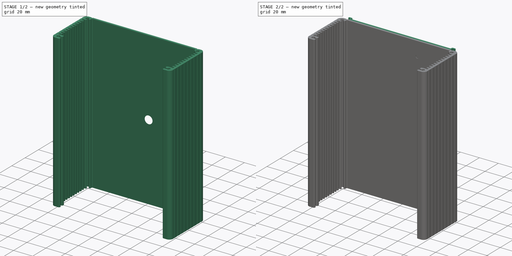
[diagram: build sequence overview — one tinted view per stage of 2, left to right]
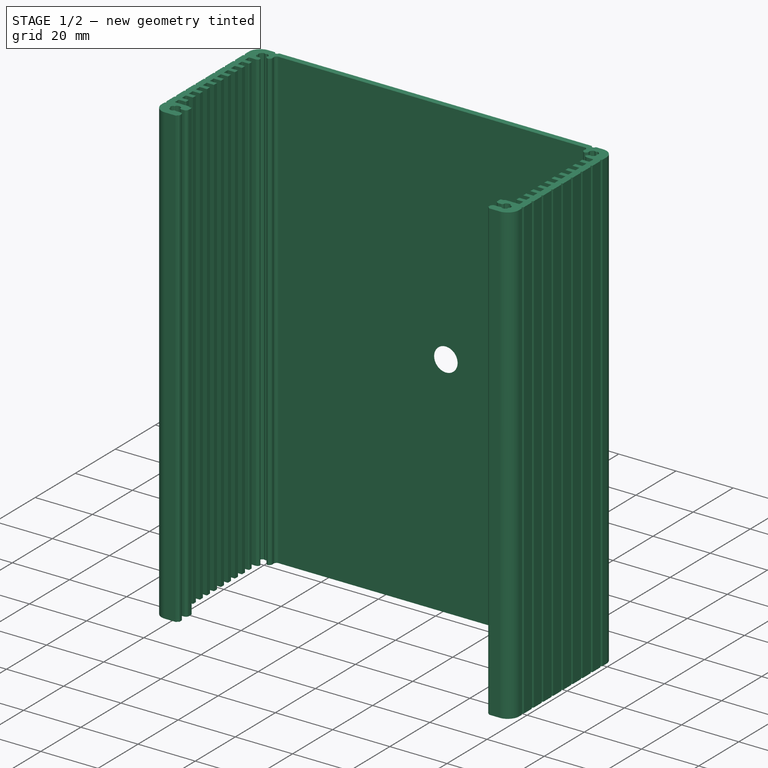
[diagram: stage 1 of 2 — iso view after this stage's code; geometry added in this stage tinted green]
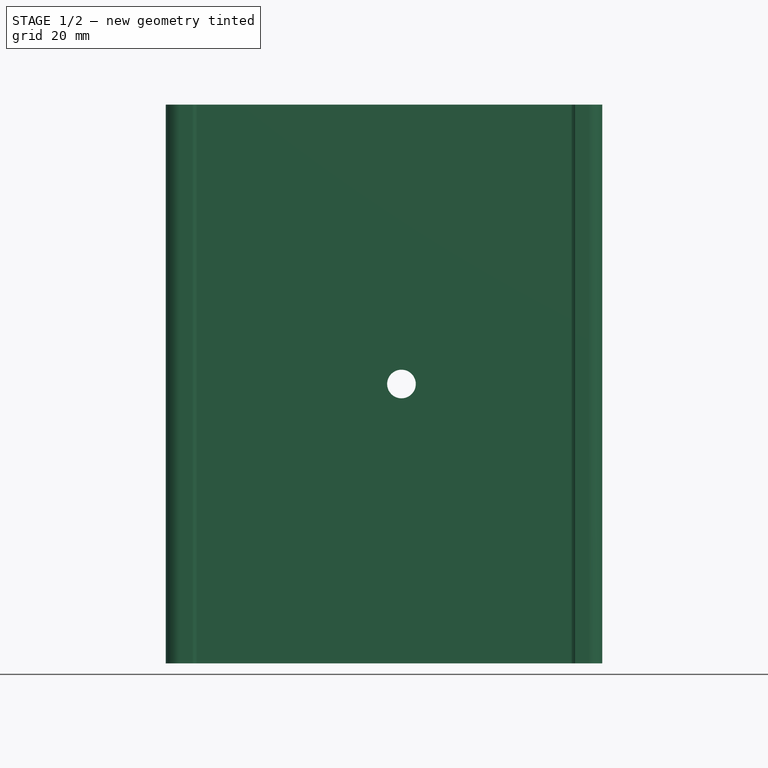
[diagram: stage 1 of 2 — front view after this stage's code; geometry added in this stage tinted green]
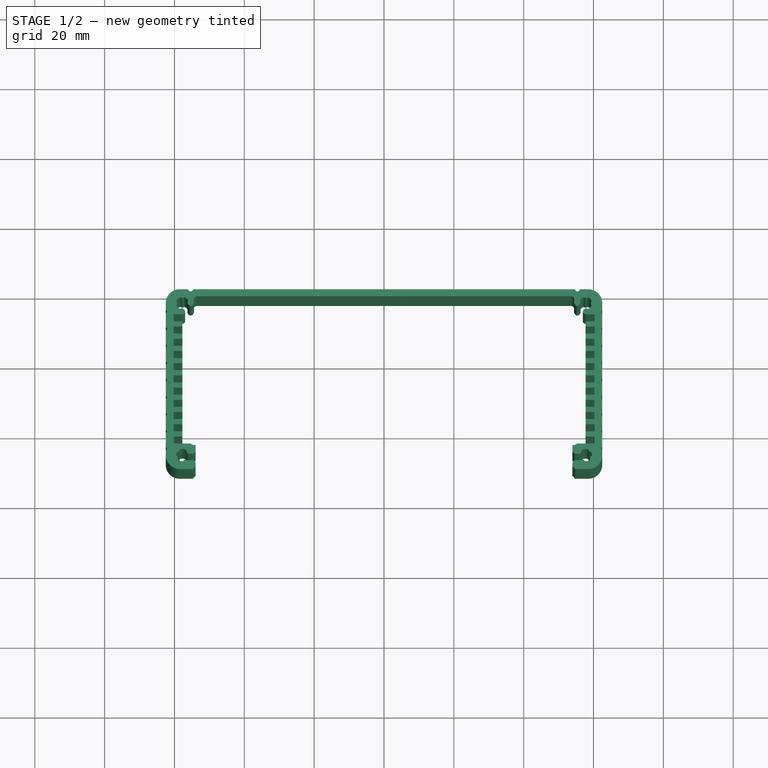
[diagram: stage 1 of 2 — top view after this stage's code; geometry added in this stage tinted green]
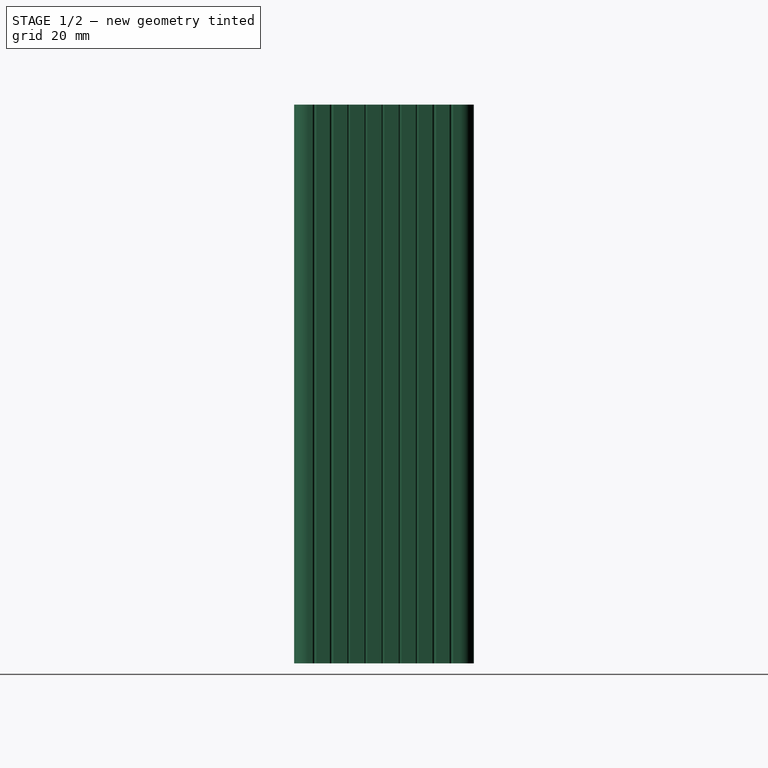
[diagram: stage 1 of 2 — right view after this stage's code; geometry added in this stage tinted green]
FCSTD DOCUMENT  (FreeCAD 0.20R28730 (Git))
Label: Enclosure 1455Q1602BK
License: All rights reserved
LicenseURL: http://en.wikipedia.org/wiki/All_rights_reserved
objects: PartDesign::CoordinateSystem×6, Part::Feature×2, PartDesign::FeatureBase×2, Sketcher::SketchObject×2, PartDesign::Hole×2, PartDesign::Body×2
note: 18 computed .brp shape members not serialized (recipe doc carries the construction recipe); baked Part::Feature solids carry a one-line shape summary decoded from their .brp

FEATURE [Part::Feature] Part__Feature  label="1455Q1602BK Extrusion 160mm"
  Placement = pos=(0,0,0) rot=(-1,0,0;1.5708rad)
  shape: bbox 125 x 160 x 51.5 mm, 282 faces (baked)
FEATURE [Part::Feature] Part__Feature001  label="1455Q1602BK Cap 160mm"
  Placement = pos=(0,0,51.5) rot=(-1,0,0;1.5708rad)
  shape: bbox 112.4 x 160 x 4.29 mm, 26 faces (baked)
FEATURE [PartDesign::FeatureBase] BaseFeature
  BaseFeature = -> Part__Feature
FEATURE [Sketcher::SketchObject] Sketch
  FullyConstrained = true
  MapMode = 5
  Placement = pos=(0,0,0) rot=(1,0,0;1.5708rad)
  Support = -> [XZ_Plane]
  sketch-geometry (1):
    g0: Circle CenterX=5 CenterY=0 CenterZ=0 NormalX=0 NormalY=0 NormalZ=1 AngleXU=0 Radius=2.5
  constraints (3):
    c: PointOnObject(g0,g-1)
    c: Diameter(g0) = 5
    c: DistanceX(g-1,g0) = 5
FEATURE [PartDesign::Hole] Hole  label="TransformerMountingHole"
  BaseFeature = -> BaseFeature
  CustomThreadClearance = 0
  Depth = 25
  DepthType = 0
  Diameter = 5.5
  DrillForDepth = false
  DrillPoint = 1
  DrillPointAngle = 118
  HoleCutCountersinkAngle = 90
  HoleCutCustomValues = false
  HoleCutDepth = 0
  HoleCutDiameter = 12.2
  HoleCutType = 7
  ModelThread = false
  Profile = -> Sketch
  Refine = true
  Reversed = true
  Tapered = false
  TaperedAngle = 90
  ThreadClass = 0
  ThreadDepth = 25
  ThreadDepthType = 0
  ThreadDirection = 0
  ThreadFit = 0
  ThreadSize = 13
  ThreadType = 1
  Threaded = false
  UseCustomThreadClearance = false
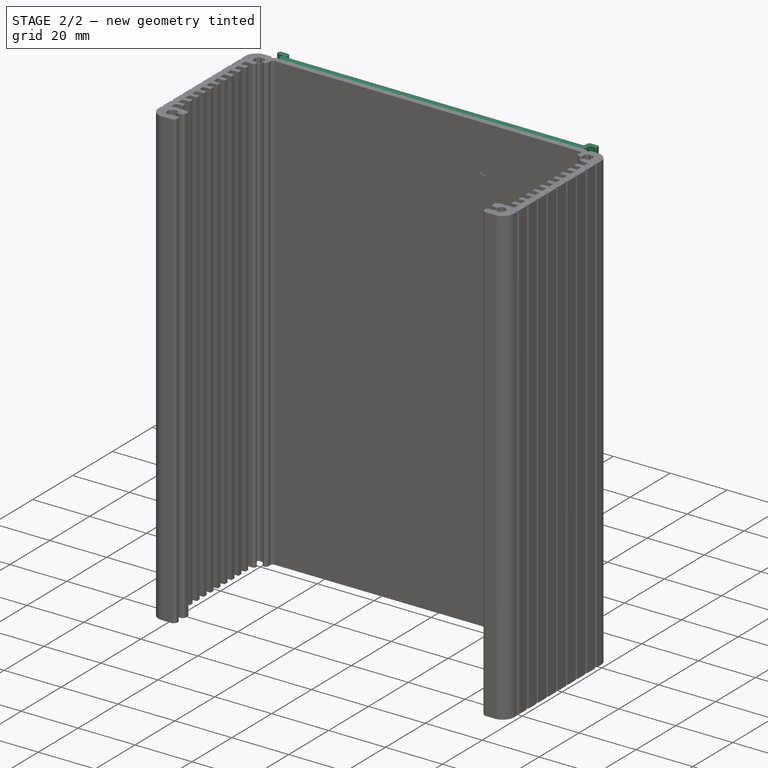
[diagram: stage 2 of 2 — iso view after this stage's code; geometry added in this stage tinted green]
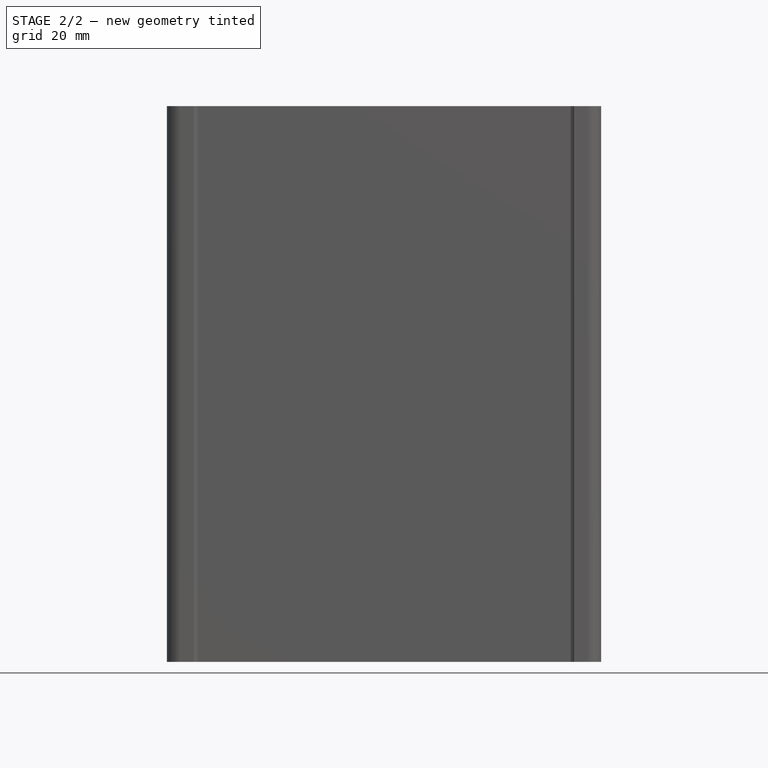
[diagram: stage 2 of 2 — front view after this stage's code; geometry added in this stage tinted green]
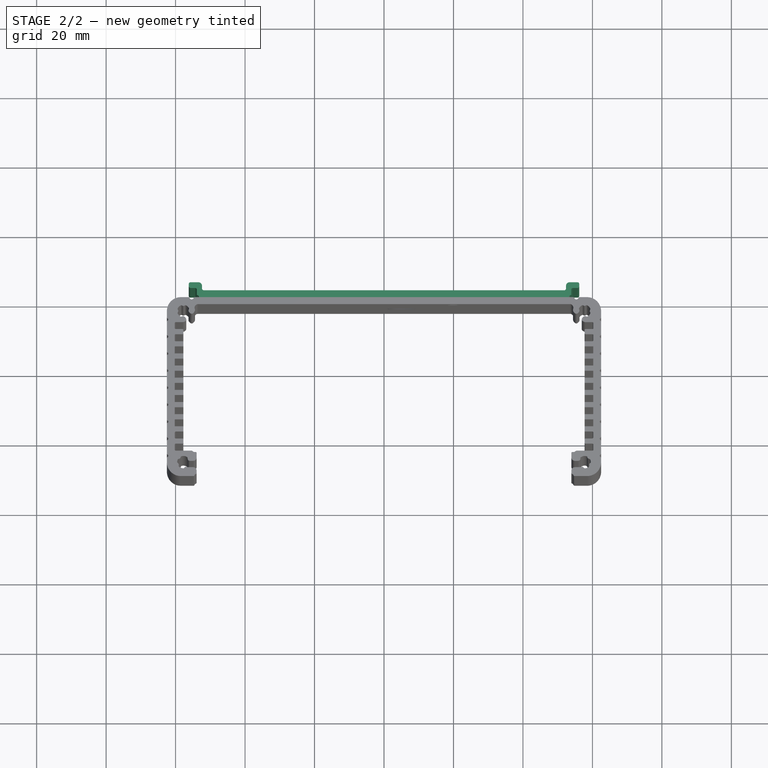
[diagram: stage 2 of 2 — top view after this stage's code; geometry added in this stage tinted green]
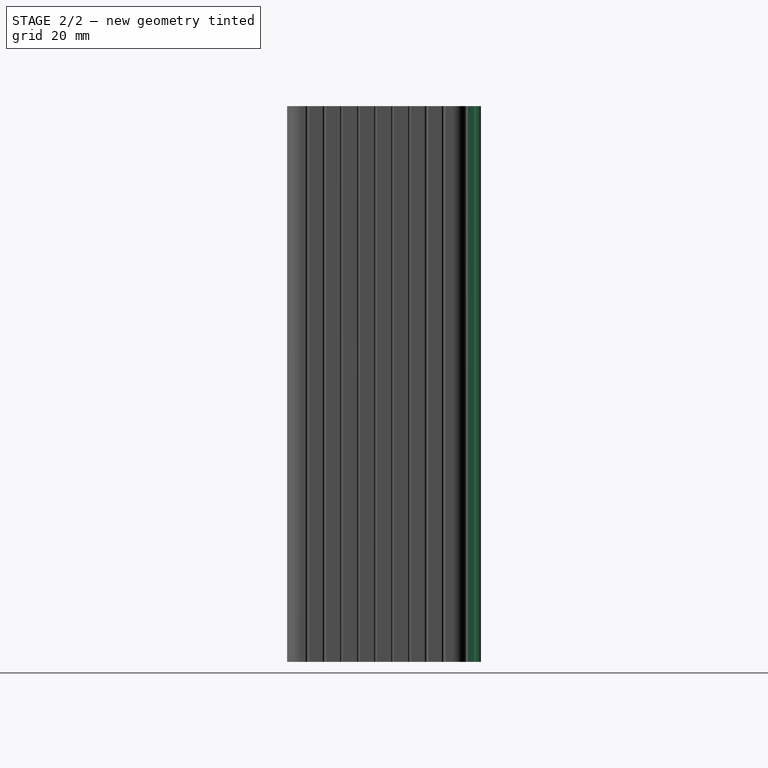
[diagram: stage 2 of 2 — right view after this stage's code; geometry added in this stage tinted green]
FEATURE [PartDesign::FeatureBase] BaseFeature001
  BaseFeature = -> Part__Feature001
FEATURE [Sketcher::SketchObject] Sketch001
  FullyConstrained = true
  MapMode = 5
  Placement = pos=(0,0,0) rot=(1,0,0;1.5708rad)
  Support = -> [XZ_Plane]
  sketch-geometry (1):
    g0: Circle CenterX=20 CenterY=65 CenterZ=0 NormalX=0 NormalY=0 NormalZ=1 AngleXU=0 Radius=1.5
  constraints (3):
    c: DistanceX(g-1,g0) = 20
    c: DistanceY(g-1,g0) = 65
    c: Diameter(g0) = 3
FEATURE [PartDesign::Hole] Hole001  label="GroundingHole"
  BaseFeature = -> Hole
  CustomThreadClearance = 0
  Depth = 25
  DepthType = 0
  Diameter = 3.4
  DrillForDepth = false
  DrillPoint = 1
  DrillPointAngle = 118
  HoleCutCountersinkAngle = 90
  HoleCutCustomValues = false
  HoleCutDepth = 0
  HoleCutDiameter = 6.7
  HoleCutType = 7
  ModelThread = false
  Profile = -> Sketch001
  Refine = true
  Reversed = true
  Tapered = false
  TaperedAngle = 90
  ThreadClass = 0
  ThreadDepth = 25
  ThreadDepthType = 0
  ThreadDirection = 0
  ThreadFit = 0
  ThreadSize = 9
  ThreadType = 1
  Threaded = false
  UseCustomThreadClearance = false
FEATURE [PartDesign::CoordinateSystem] LCS_Extrusion
  AttacherType = Attacher::AttachEngine3D
  MapMode = 2
FEATURE [PartDesign::CoordinateSystem] LCS_Cap
  AttacherType = Attacher::AttachEngine3D
  MapMode = 1
  Placement = pos=(0,51.5,0) rot=(0,0,1;0rad)
FEATURE [PartDesign::Body] Body001  label="Enclosure_1455Q1602BK_Cap"
  BaseFeature = -> Part__Feature001
  Group = -> [BaseFeature001,LCS_Cap]
  Origin = -> Origin001
  Placement = pos=(0,0,51.5) rot=(-1,0,0;1.5708rad)
  Tip = -> BaseFeature001
FEATURE [PartDesign::CoordinateSystem] LCS_Transformer_Mounting_Hole  label="LCS_Transformer_Inside_Mounting_Hole"
  AttacherType = Attacher::AttachEngine3D
  MapMode = 11
  Placement = pos=(5,-2,4e-16) rot=(0.57735,-0.57735,0.57735;2.0944rad)
  Support = -> [Hole001]
FEATURE [PartDesign::CoordinateSystem] LCS_Grounding_Hole  label="LCS_Inside_Grounding_Hole"
  AttacherType = Attacher::AttachEngine3D
  MapMode = 11
  Placement = pos=(20,-2,65) rot=(0.57735,-0.57735,0.57735;2.0944rad)
  Support = -> [Hole001]
FEATURE [PartDesign::CoordinateSystem] LCS_Transformer_Outside_Mounting_Hole
  AttacherType = Attacher::AttachEngine3D
  MapMode = 11
  Placement = pos=(5,0,0) rot=(0.57735,-0.57735,-0.57735;4.18879rad)
  Support = -> [Hole001]
FEATURE [PartDesign::CoordinateSystem] LCS_Outside_Grounding_Hole
  AttacherType = Attacher::AttachEngine3D
  MapMode = 11
  Placement = pos=(20,1.4e-14,65) rot=(0.57735,-0.57735,-0.57735;4.18879rad)
  Support = -> [Hole001]
FEATURE [PartDesign::Body] Body  label="Enclosure_1455Q1602BK_Extrusion"
  BaseFeature = -> Part__Feature
  Group = -> [BaseFeature,Sketch,Hole,Sketch001,Hole001,LCS_Extrusion,LCS_Transformer_Mounting_Hole,LCS_Transformer_Outside_Mounting_Hole,LCS_Grounding_Hole,LCS_Outside_Grounding_Hole]
  Origin = -> Origin
  Placement = pos=(0,0,0) rot=(-1,0,0;1.5708rad)
  Tip = -> Hole001
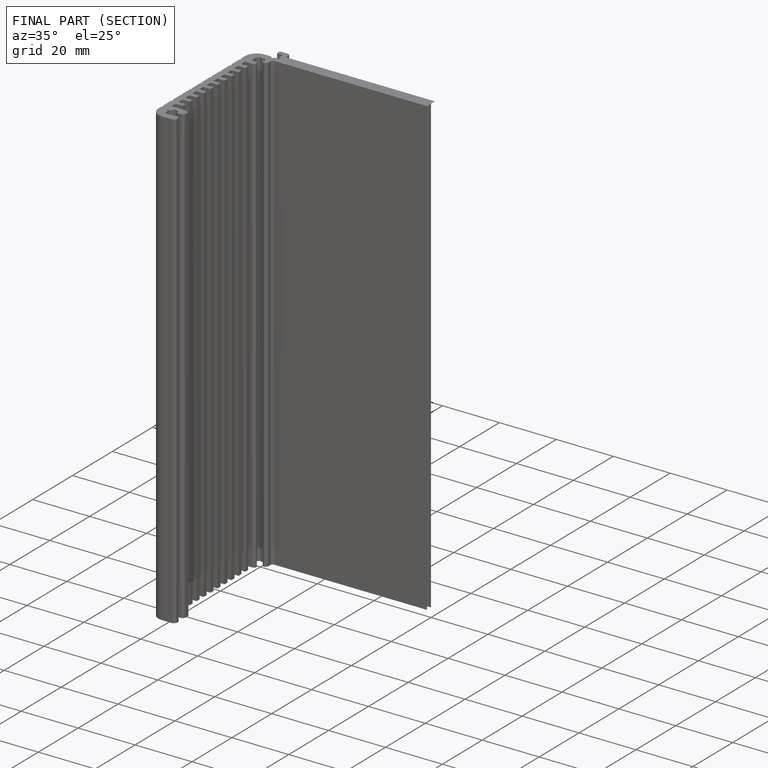
[diagram: finished part — half-section view (interior)]
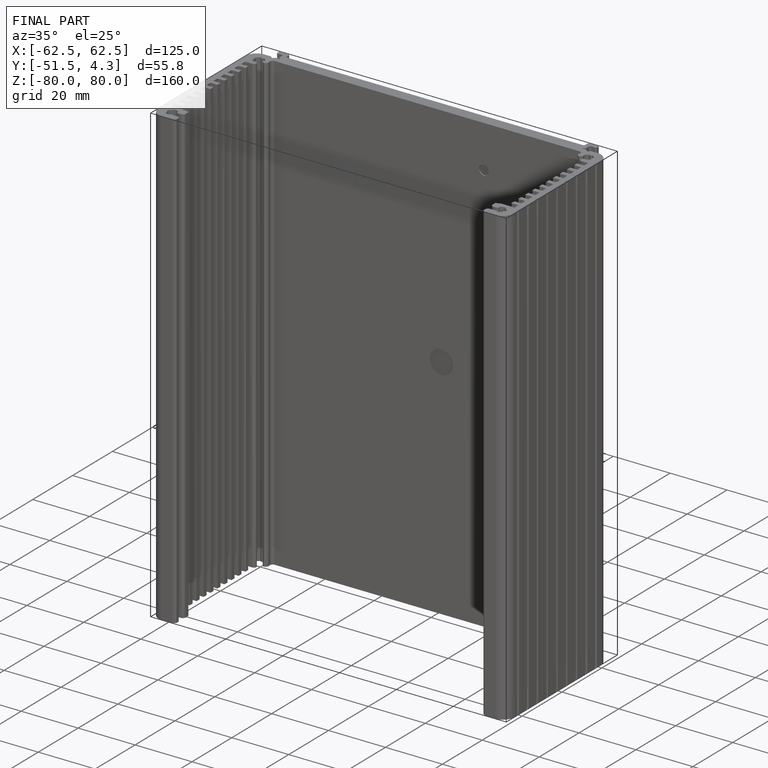
[diagram: finished part — iso view with bounding-box wireframe]
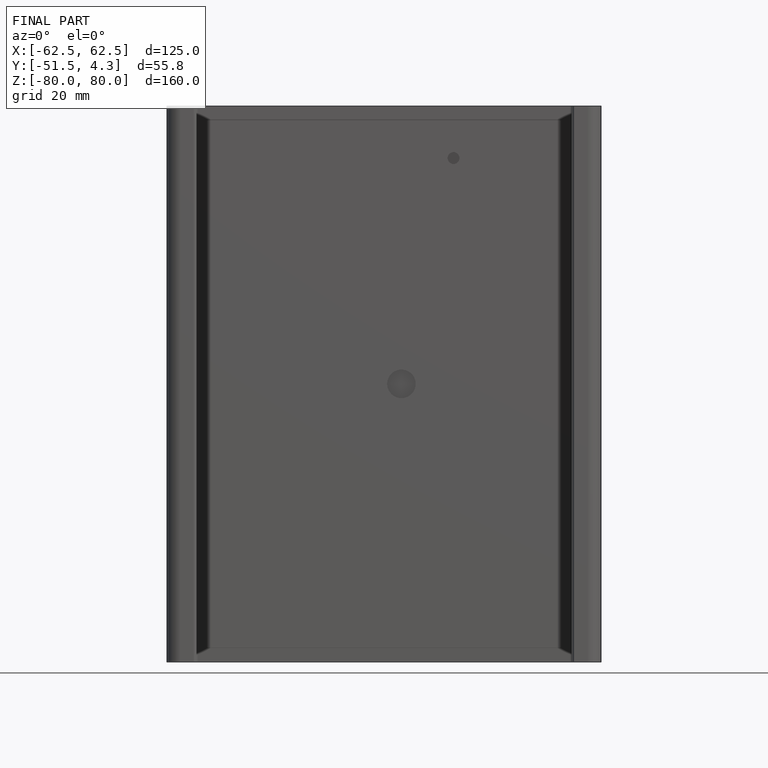
[diagram: finished part — front view with bounding-box wireframe]
